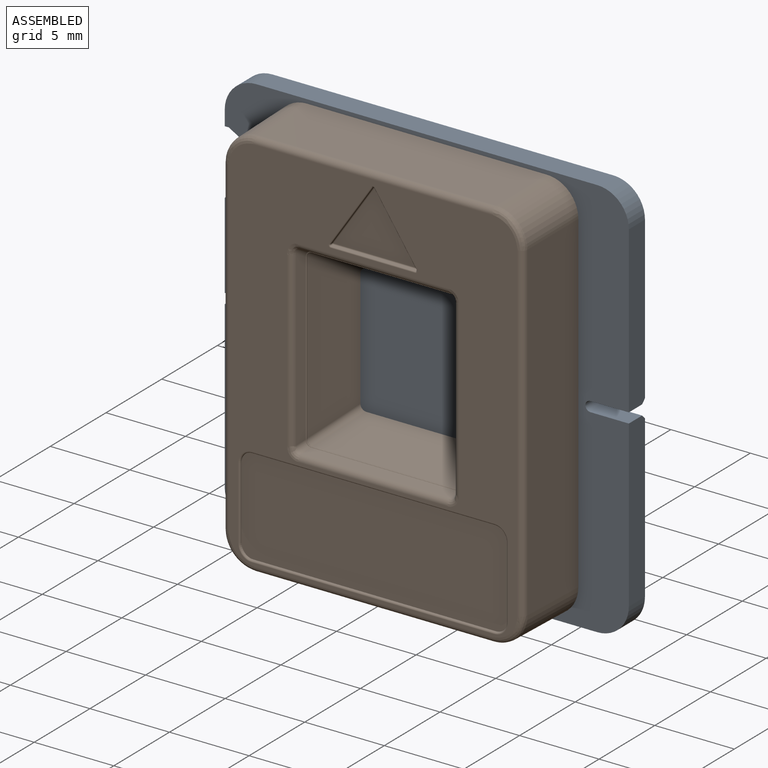
[diagram: assembled view]
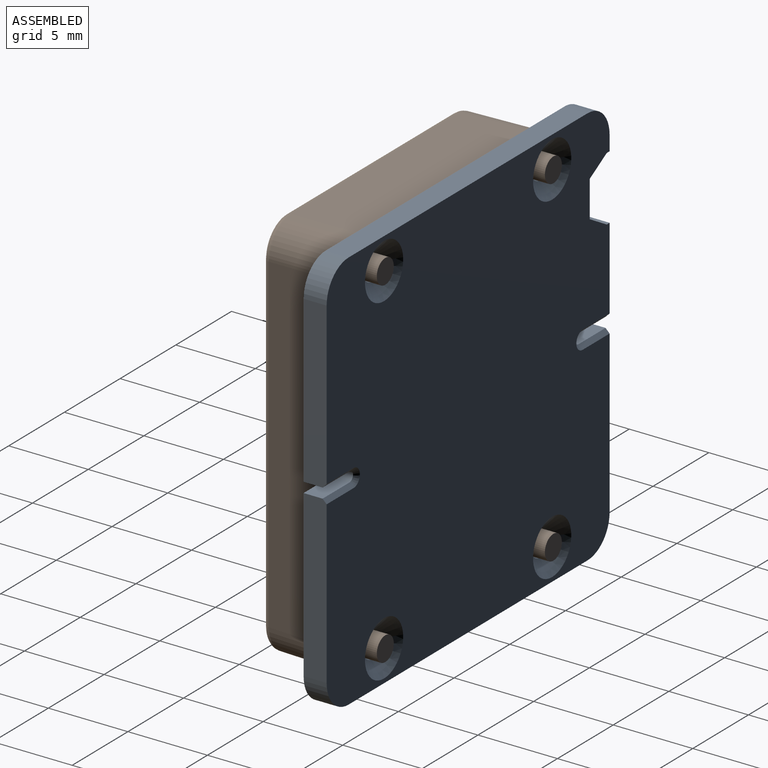
[diagram: assembled view, second angle]
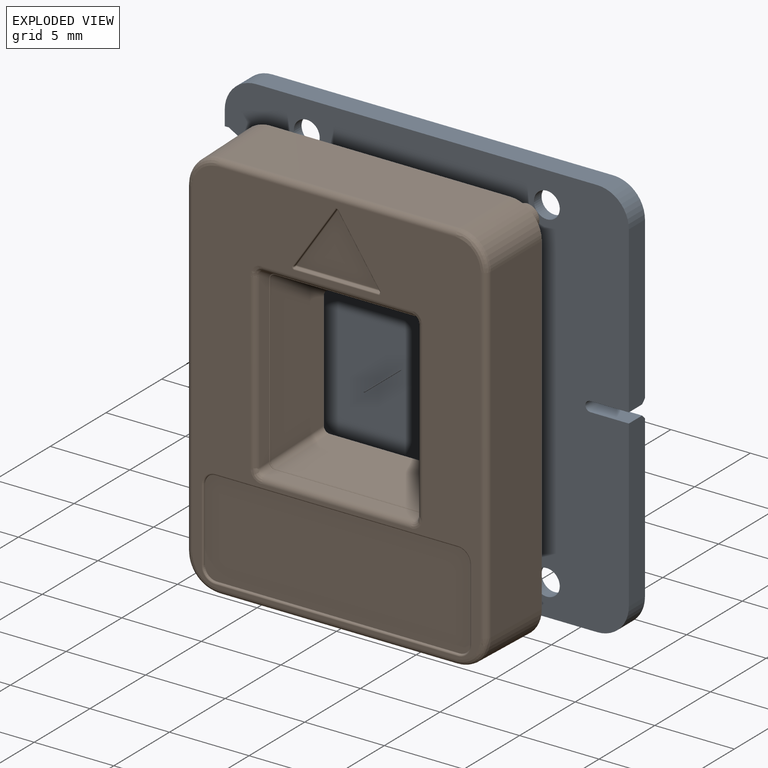
[diagram: exploded view]
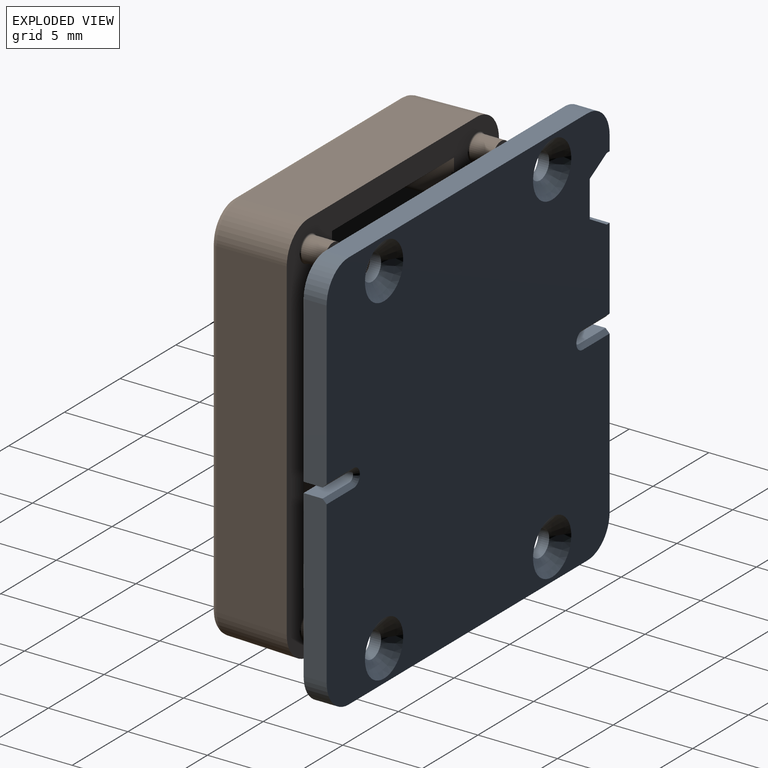
[diagram: exploded view, second angle]
ASSEMBLY  parts=2 mates=3
PART A: 38 faces, bbox 25.4x1.4x25.4 mm
  f0: plane 1.45x0.93mm, normal (-1,0,0), area 1.4mm2, adj f1,f2,f30,f33
  f1: plane 25.4x25.4mm, normal (0,1,0), area 624.2mm2, adj f0,f3,f4,f5,f6,f7,f8,f9
  f2: plane 25.4x25.4mm, normal (0,-1,0), area 592.4mm2, adj f0,f3,f4,f5,f6,f7,f8,f15
  f3: plane 10.4x1.45mm, normal (-1,0,0), area 15mm2, adj f1,f2,f13,f17,f29
  f4: plane 10.4x1.45mm, normal (1,0,0), area 15mm2, adj f1,f2,f9,f20,f32
  f5: plane 5.4x1.45mm, normal (-1,0,0), area 7.8mm2, adj f1,f2,f14,f15,f37
  f6: plane 21.44x1.45mm, normal (0,0,1), area 31mm2, adj f1,f2,f29,f32
  f7: plane 10.4x1.45mm, normal (1,0,0), area 15mm2, adj f1,f2,f11,f18,f31
  f8: plane 21.44x1.45mm, normal (0,0,-1), area 31mm2, adj f1,f2,f30,f31
  f9: plane 2.41x1.19mm, normal (0,0,-1), area 2.9mm2, adj f1,f4,f10,f20
  f10: cylinder r=0.32mm len=1.19mm, axis (0,1,0), area 1.2mm2, adj f1,f9,f11,f19
  f11: plane 2.41x1.19mm, normal (0,0,1), area 2.9mm2, adj f1,f7,f10,f18
  f12: cylinder r=0.32mm len=1.19mm, axis (0,1,0), area 1.2mm2, adj f1,f13,f14,f16
  f13: plane 2.41x1.19mm, normal (0,0,-1), area 2.9mm2, adj f1,f3,f12,f17
  f14: plane 2.41x1.19mm, normal (0,0,1), area 2.9mm2, adj f1,f5,f12,f15
  f15: plane 2.41x0.25mm, normal (0,-0.71,0.71), area 0.9mm2, adj f2,f5,f14,f16
  f16: cone r=0.57mm half-angle=45deg, axis (0,-1,0), area 0.5mm2, adj f2,f12,f15,f17
  f17: plane 2.41x0.25mm, normal (0,-0.71,-0.71), area 0.9mm2, adj f2,f3,f13,f16
  f18: plane 2.41x0.25mm, normal (0,-0.71,0.71), area 0.9mm2, adj f2,f7,f11,f19
  f19: cone r=0.57mm half-angle=45deg, axis (0,-1,0), area 0.5mm2, adj f2,f10,f18,f20
  f20: plane 2.41x0.25mm, normal (0,-0.71,-0.71), area 0.9mm2, adj f2,f4,f9,f19
  f21: cone r=1.71mm half-angle=50deg, axis (0,-1,0), area 9.3mm2, adj f2,f22
  f22: cylinder r=0.81mm len=1.63mm, axis (0,-1,0), area 3.5mm2, adj f1,f21
  f23: cone r=1.71mm half-angle=50deg, axis (0,-1,0), area 9.3mm2, adj f2,f24
  f24: cylinder r=0.81mm len=1.63mm, axis (0,-1,0), area 3.5mm2, adj f1,f23
  f25: cone r=1.71mm half-angle=50deg, axis (0,-1,0), area 9.3mm2, adj f2,f26
  f26: cylinder r=0.81mm len=1.63mm, axis (0,-1,0), area 3.5mm2, adj f1,f25
  f27: cone r=1.71mm half-angle=50deg, axis (0,-1,0), area 9.3mm2, adj f2,f28
  f28: cylinder r=0.81mm len=1.63mm, axis (0,-1,0), area 3.5mm2, adj f1,f27
  f29: cylinder r=1.98mm len=1.98mm, axis (0,-1,0), area 4.5mm2, adj f1,f2,f3,f6
  f30: cylinder r=1.98mm len=1.98mm, axis (0,-1,0), area 4.5mm2, adj f0,f1,f2,f8
  f31: cylinder r=1.98mm len=1.98mm, axis (0,-1,0), area 4.5mm2, adj f1,f2,f7,f8
  f32: cylinder r=1.98mm len=1.98mm, axis (0,-1,0), area 4.5mm2, adj f1,f2,f4,f6
  f33: plane 1.45x0.25mm, normal (0,0,1), area 0.4mm2, adj f0,f1,f2,f34
  f34: plane 1.52x1.45mm, normal (-0.5,0,0.87), area 2.5mm2, adj f1,f2,f33,f35
  f35: plane 2.3x1.45mm, normal (-1,0,0), area 3.3mm2, adj f1,f2,f34,f36
  f36: plane 1.52x1.45mm, normal (-0.5,0,-0.87), area 2.5mm2, adj f1,f2,f35,f37
  f37: plane 1.45x0.25mm, normal (0,0,-1), area 0.4mm2, adj f1,f2,f5,f36
PART B: 148 faces, bbox 19.3x6.6x25.1 mm
  f0: plane 3.14x2.29mm, normal (1,-0.03,0), area 6.8mm2, adj f2,f3,f21,f22,f25,f51,f57,f147
  f1: plane 3.05x2.29mm, normal (-1,-0.03,0), area 6.6mm2, adj f2,f3,f25,f37,f38,f56,f57,f147
  f2: plane 10.97x1.31mm, normal (0,-0.03,1), area 14.3mm2, adj f0,f1,f25,f147
  f3: plane 10.87x1.2mm, normal (0,-0.03,1), area 12.5mm2, adj f0,f1,f57,f147
  f4: plane 3.14x2.29mm, normal (1,-0.03,0), area 6.9mm2, adj f6,f7,f19,f23,f25,f53,f57,f146
  f5: plane 3.05x2.29mm, normal (-1,-0.03,0), area 6.7mm2, adj f6,f7,f24,f25,f35,f54,f57,f146
  f6: plane 10.87x1.2mm, normal (0,-0.03,-1), area 12.5mm2, adj f4,f5,f57,f146
  f7: plane 10.97x1.31mm, normal (0,-0.03,-1), area 14.3mm2, adj f4,f5,f25,f146
  f8: plane 10.27x3.63mm, normal (0.98,0.22,0), area 32.8mm2, adj f14,f62,f66,f92
  f9: plane 10.86x0.64mm, normal (0.98,0.22,0), area 7mm2, adj f13,f67,f68,f99
  f10: plane 9x3.64mm, normal (0,0.22,-0.98), area 30.6mm2, adj f14,f16,f62,f98
  f11: plane 10.86x0.64mm, normal (-0.98,0.22,0), area 7mm2, adj f15,f74,f77,f99
  f12: plane 9.42x0.75mm, normal (0,0.5,0.87), area 8mm2, adj f13,f15,f72,f99
  f13: cylinder r=0.38mm len=0.98mm, axis (-0.19,0.85,-0.49), area 0.5mm2, adj f9,f12,f69,f99
  f14: cylinder r=0.38mm len=3.71mm, axis (-0.21,0.95,0.21), area 2.2mm2, adj f8,f10,f62,f90,f92,f98
  f15: cylinder r=0.38mm len=0.98mm, axis (0.19,0.85,-0.49), area 0.5mm2, adj f11,f12,f75,f99
  f16: cylinder r=0.38mm len=3.71mm, axis (0.21,0.95,0.21), area 2.2mm2, adj f10,f62,f64,f95,f96,f98
  f17: plane 24.18x18.34mm, normal (0,1,0), area 180.6mm2, adj f67,f69,f70,f72,f73,f75,f76,f77
  f18: plane 1.7x0.15mm, normal (1,0,0), area 0.3mm2, adj f21,f22,f25,f47
  f19: plane 1.12x0.15mm, normal (0,0,-1), area 0.2mm2, adj f4,f23,f25,f34
  f20: plane 1.1x0.15mm, normal (-1,0,0), area 0.2mm2, adj f24,f25,f35,f49
  f21: plane 1.12x0.15mm, normal (0,0,1), area 0.2mm2, adj f0,f18,f22,f25
  f22: plane 1.7x1.12mm, normal (0,-1,0), area 1.9mm2, adj f0,f18,f21,f47,f51
  f23: plane 1.12x1.1mm, normal (0,-1,0), area 1.2mm2, adj f4,f19,f34,f48,f53
  f24: plane 1.12x1.1mm, normal (0,-1,0), area 1.2mm2, adj f5,f20,f35,f49,f54
  f25: plane 24.92x19.08mm, normal (0,-1,0), area 130.9mm2, adj f0,f1,f2,f4,f5,f7,f18,f19
  f26: plane 20.93x4.45mm, normal (-1,0.02,0), area 92.8mm2, adj f25,f30,f31,f84
  f27: plane 15.09x4.45mm, normal (0,0.02,1), area 66.8mm2, adj f25,f30,f33,f80
  f28: plane 20.93x4.45mm, normal (1,0.02,0), area 92.8mm2, adj f25,f32,f33,f79
  f29: plane 15.09x4.45mm, normal (0,0.02,-1), area 66.8mm2, adj f25,f31,f32,f83
  f30: cylinder r=1.98mm len=4.47mm, axis (-0.02,-1,0.02), area 13.9mm2, adj f25,f26,f27,f82
  f31: cylinder r=1.98mm len=4.47mm, axis (-0.02,-1,-0.02), area 13.9mm2, adj f25,f26,f29,f85
  f32: cylinder r=1.98mm len=4.47mm, axis (0.02,-1,-0.02), area 13.9mm2, adj f25,f28,f29,f81
  f33: cylinder r=1.98mm len=4.47mm, axis (0.02,-1,0.02), area 13.9mm2, adj f25,f27,f28,f78
  f34: plane 1.1x0.15mm, normal (1,0,0), area 0.2mm2, adj f19,f23,f25,f48
  f35: plane 1.12x0.15mm, normal (0,0,-1), area 0.2mm2, adj f5,f20,f24,f25
  f36: plane 1.7x0.15mm, normal (-1,0,0), area 0.3mm2, adj f25,f37,f38,f50
  f37: plane 1.12x0.15mm, normal (0,0,1), area 0.2mm2, adj f1,f25,f36,f38
  f38: plane 1.7x1.12mm, normal (0,-1,0), area 1.9mm2, adj f1,f36,f37,f50,f56
  f39: cylinder r=0.76mm len=1.52mm, axis (0,1,0), area 6.9mm2, adj f40,f131
  f40: plane 1.52x1.52mm, normal (0,-1,0), area 1.8mm2, adj f39
  f41: cylinder r=0.76mm len=1.52mm, axis (0,1,0), area 6.9mm2, adj f42,f132
  f42: plane 1.52x1.52mm, normal (0,-1,0), area 1.8mm2, adj f41
  f43: cylinder r=0.76mm len=1.52mm, axis (0,1,0), area 6.9mm2, adj f44,f130
  f44: plane 1.52x1.52mm, normal (0,-1,0), area 1.8mm2, adj f43
  f45: cylinder r=0.76mm len=1.52mm, axis (0,1,0), area 6.9mm2, adj f46,f133
  f46: plane 1.52x1.52mm, normal (0,-1,0), area 1.8mm2, adj f45
  f47: plane 3.16x2.29mm, normal (0,-0.03,1), area 7mm2, adj f18,f22,f25,f51,f52,f57
  f48: plane 3.16x2.29mm, normal (0,-0.03,-1), area 7mm2, adj f23,f25,f34,f52,f53,f57
  f49: plane 3.04x2.29mm, normal (0,-0.03,-1), area 6.7mm2, adj f20,f24,f25,f54,f55,f57
  f50: plane 3.04x2.29mm, normal (0,-0.03,1), area 6.7mm2, adj f25,f36,f38,f55,f56,f57
  f51: cone r=0.25mm half-angle=1.5deg, axis (0,1,0), area 1.4mm2, adj f0,f22,f47,f57
  f52: plane 16.76x3.16mm, normal (1,-0.03,0), area 52.8mm2, adj f25,f47,f48,f57
  f53: cone r=0.25mm half-angle=1.5deg, axis (0,1,0), area 1.4mm2, adj f4,f23,f48,f57
  f54: cone r=0.25mm half-angle=1.5deg, axis (0,1,0), area 1.3mm2, adj f5,f24,f49,f57
  f55: plane 16.76x3.02mm, normal (-1,-0.03,0), area 50.5mm2, adj f25,f49,f50,f57
  f56: cone r=0.25mm half-angle=1.5deg, axis (0,1,0), area 1.3mm2, adj f1,f38,f50,f57
  f57: plane 21.83x16.04mm, normal (-0.01,-1,0), area 153.8mm2, adj f0,f1,f3,f4,f5,f6,f47,f48
  f58: plane 12.38x3mm, normal (-0.98,-0.22,0), area 34.4mm2, adj f57,f62,f136,f137
  f59: plane 11.38x2.99mm, normal (0,-0.21,0.98), area 32.3mm2, adj f57,f62,f134,f137
  f60: plane 12.29x2.89mm, normal (0.98,-0.22,0), area 33mm2, adj f57,f62,f134,f135
  f61: plane 11.45x2.99mm, normal (0,-0.5,-0.87), area 36.7mm2, adj f57,f62,f135,f136
  f62: plane 11.22x11.18mm, normal (0,-1,0), area 56mm2, adj f8,f10,f14,f16,f58,f59,f60,f61
  f63: plane 9.32x0.64mm, normal (0,0.22,-0.98), area 6mm2, adj f68,f73,f74,f86,f91,f97
  f64: plane 10.27x3.63mm, normal (-0.98,0.22,0), area 32.8mm2, adj f16,f62,f71,f95
  f65: plane 9.05x3.65mm, normal (0,0.5,0.87), area 34.7mm2, adj f62,f66,f71,f87,f89,f94
  f66: cylinder r=0.38mm len=3.88mm, axis (-0.19,0.85,-0.49), area 2.4mm2, adj f8,f62,f65,f88,f89,f92
  f67: cylinder r=0.38mm len=10.86mm, axis (0,0,-1), area 5.6mm2, adj f9,f17,f69,f70
  f68: cylinder r=0.38mm len=0.74mm, axis (-0.21,0.95,0.21), area 0.4mm2, adj f9,f63,f70,f91,f99
  f69: bspline ~0.79x0.7mm, area 0.3mm2, adj f13,f17,f67,f72
  f70: bspline ~0.76x0.76mm, area 0.4mm2, adj f17,f67,f68,f73
  f71: cylinder r=0.38mm len=3.88mm, axis (0.19,0.85,-0.49), area 2.4mm2, adj f62,f64,f65,f93,f94,f95
  f72: cylinder r=0.38mm len=9.42mm, axis (1,0,0), area 3.8mm2, adj f12,f17,f69,f75
  f73: cylinder r=0.38mm len=9.32mm, axis (-1,0,0), area 4.8mm2, adj f17,f63,f70,f76
  f74: cylinder r=0.38mm len=0.74mm, axis (0.21,0.95,0.21), area 0.4mm2, adj f11,f63,f76,f97,f99
  f75: bspline ~0.79x0.7mm, area 0.3mm2, adj f15,f17,f72,f77
  f76: bspline ~0.76x0.76mm, area 0.4mm2, adj f17,f73,f74,f77
  f77: cylinder r=0.38mm len=10.86mm, axis (0,0,1), area 5.6mm2, adj f11,f17,f75,f76
  f78: bspline ~1.98x1.98mm, area 1.7mm2, adj f17,f33,f79,f80
  f79: cylinder r=0.38mm len=20.77mm, axis (0,0,-1), area 12.3mm2, adj f17,f28,f78,f81
  f80: cylinder r=0.38mm len=14.93mm, axis (1,0,0), area 8.8mm2, adj f17,f27,f78,f82
  f81: bspline ~1.98x1.98mm, area 1.7mm2, adj f17,f32,f79,f83
  f82: bspline ~1.98x1.98mm, area 1.7mm2, adj f17,f30,f80,f84
  f83: cylinder r=0.38mm len=14.93mm, axis (-1,0,0), area 8.8mm2, adj f17,f29,f81,f85
  f84: cylinder r=0.38mm len=20.77mm, axis (0,0,1), area 12.3mm2, adj f17,f26,f82,f85
  f85: bspline ~1.98x1.98mm, area 1.7mm2, adj f17,f31,f83,f84
  f86: cylinder r=0.05mm len=9.02mm, axis (1,0,0), area 1mm2, adj f63,f91,f97,f98
  f87: cylinder r=0.05mm len=9.02mm, axis (-1,0,0), area 1mm2, adj f65,f89,f94,f99
  f88: cone r=0.41mm half-angle=45deg, axis (0,-1,0), area 0mm2, adj f66,f89,f92
  f89: torus R=0.38mm, axis (0,1,0), area 0.1mm2, adj f65,f66,f87,f88,f99,f101
  f90: cone r=0.41mm half-angle=45deg, axis (0,-1,0), area 0mm2, adj f14,f91,f92,f98
  f91: torus R=0.38mm, axis (0,1,0), area 0.1mm2, adj f63,f68,f86,f90,f99,f101
  f92: plane 10.35x0.02mm, normal (0.71,-0.71,0), area 0.2mm2, adj f8,f14,f66,f88,f90,f101
  f93: cone r=0.41mm half-angle=45deg, axis (0,-1,0), area 0mm2, adj f71,f94,f95
  f94: torus R=0.38mm, axis (0,1,0), area 0.1mm2, adj f65,f71,f87,f93,f99,f100
  f95: plane 10.35x0.02mm, normal (-0.71,-0.71,0), area 0.2mm2, adj f16,f64,f71,f93,f96,f100
  f96: cone r=0.41mm half-angle=45deg, axis (0,-1,0), area 0mm2, adj f16,f95,f97,f98
  f97: torus R=0.38mm, axis (0,1,0), area 0.1mm2, adj f63,f74,f86,f96,f99,f100
  f98: plane 9.02x0mm, normal (0,-0.71,-0.71), area 0mm2, adj f10,f14,f16,f86,f90,f96
  f99: plane 10.98x9.89mm, normal (0,1,0), area 0.1mm2, adj f9,f11,f12,f13,f15,f68,f74,f87
  f100: cylinder r=0.05mm len=10.35mm, axis (0,0,-1), area 1.2mm2, adj f94,f95,f97,f99
  f101: cylinder r=0.05mm len=10.35mm, axis (0,0,-1), area 1.2mm2, adj f89,f91,f92,f99
  f102: plane 3.91x2.64mm, normal (0.83,0.09,0.56), area 0.5mm2, adj f107,f110,f114,f115
  f103: plane 3.91x2.64mm, normal (-0.83,0.09,0.56), area 0.5mm2, adj f109,f110,f116,f117
  f104: plane 5.28x0.12mm, normal (0,0.09,-1), area 0.6mm2, adj f108,f115,f116,f120
  f105: plane 5.24x3.88mm, normal (0,1,0), area 10.2mm2, adj f107,f108,f109
  f106: sphere r=0.08mm, area 0mm2, adj f107,f109,f110
  f107: cylinder r=0.08mm len=3.93mm, axis (-0.56,0,0.83), area 0.5mm2, adj f102,f105,f106,f111
  f108: cylinder r=0.08mm len=5.24mm, axis (1,0,0), area 0.6mm2, adj f104,f105,f111,f112
  f109: cylinder r=0.08mm len=3.93mm, axis (-0.56,0,-0.83), area 0.5mm2, adj f103,f105,f106,f112
  f110: cylinder r=0.08mm len=0.13mm, axis (0,-0.99,0.15), area 0mm2, adj f102,f103,f106,f113
  f111: sphere r=0.08mm, area 0mm2, adj f107,f108,f115
  f112: sphere r=0.08mm, area 0mm2, adj f108,f109,f116
  f113: bspline ~0.27x0.12mm, area 0mm2, adj f17,f110,f114,f117
  f114: cylinder r=0.08mm len=3.95mm, axis (0.56,0,-0.83), area 0.5mm2, adj f17,f102,f113,f118
  f115: cylinder r=0.08mm len=0.13mm, axis (0.16,-0.98,-0.09), area 0mm2, adj f102,f104,f111,f118
  f116: cylinder r=0.08mm len=0.13mm, axis (-0.16,-0.98,-0.09), area 0mm2, adj f103,f104,f112,f119
  f117: cylinder r=0.08mm len=3.95mm, axis (0.56,0,0.83), area 0.5mm2, adj f17,f103,f113,f119
  f118: bspline ~0.25x0.18mm, area 0mm2, adj f17,f114,f115,f120
  f119: bspline ~0.25x0.18mm, area 0mm2, adj f17,f116,f117,f120
  f120: cylinder r=0.08mm len=5.28mm, axis (-1,0,0), area 0.6mm2, adj f17,f104,f118,f119
  f121: cone r=0.76mm half-angle=5deg, axis (0,1,0), area 0.1mm2, adj f122,f128,f129,f141
  f122: plane 15.24x0.06mm, normal (0,0.09,-1), area 0.9mm2, adj f121,f123,f129,f139
  f123: cone r=0.76mm half-angle=5deg, axis (0,1,0), area 0.1mm2, adj f122,f124,f129,f138
  f124: plane 4.57x0.06mm, normal (1,0.09,0), area 0.3mm2, adj f123,f125,f129,f140
  f125: cone r=0.76mm half-angle=5deg, axis (0,1,0), area 0.1mm2, adj f124,f126,f129,f142
  f126: plane 15.24x0.06mm, normal (0,0.09,1), area 0.9mm2, adj f125,f127,f129,f144
  f127: cone r=0.76mm half-angle=5deg, axis (0,1,0), area 0.1mm2, adj f126,f128,f129,f145
  f128: plane 4.57x0.06mm, normal (-1,0.09,0), area 0.3mm2, adj f121,f127,f129,f143
  f129: plane 16.74x6.07mm, normal (0,1,0), area 101.1mm2, adj f121,f122,f123,f124,f125,f126,f127,f128
  f130: torus R=0.84mm, axis (0,1,0), area 0.6mm2, adj f25,f43
  f131: torus R=0.84mm, axis (0,1,0), area 0.6mm2, adj f25,f39
  f132: torus R=0.84mm, axis (0,1,0), area 0.6mm2, adj f25,f41
  f133: torus R=0.84mm, axis (0,1,0), area 0.6mm2, adj f25,f45
  f134: cylinder r=0.51mm len=2.94mm, axis (-0.21,-0.96,-0.2), area 2.3mm2, adj f57,f59,f60,f62
  f135: cylinder r=0.51mm len=3.19mm, axis (0.19,0.85,-0.49), area 2.5mm2, adj f57,f60,f61,f62
  f136: cylinder r=0.51mm len=3.29mm, axis (0.19,-0.85,0.49), area 2.6mm2, adj f57,f58,f61,f62
  f137: cylinder r=0.51mm len=3.04mm, axis (-0.21,0.96,0.2), area 2.4mm2, adj f57,f58,f59,f62
  f138: torus R=0.86mm, axis (0,1,0), area 0.2mm2, adj f17,f123,f139,f140
  f139: cylinder r=0.1mm len=15.24mm, axis (-1,0,0), area 2.3mm2, adj f17,f122,f138,f141
  f140: cylinder r=0.1mm len=4.57mm, axis (0,0,-1), area 0.7mm2, adj f17,f124,f138,f142
  f141: torus R=0.86mm, axis (0,1,0), area 0.2mm2, adj f17,f121,f139,f143
  f142: torus R=0.86mm, axis (0,1,0), area 0.2mm2, adj f17,f125,f140,f144
  f143: cylinder r=0.1mm len=4.57mm, axis (0,0,1), area 0.7mm2, adj f17,f128,f141,f145
  f144: cylinder r=0.1mm len=15.24mm, axis (1,0,0), area 2.3mm2, adj f17,f126,f142,f145
  f145: torus R=0.86mm, axis (0,1,0), area 0.2mm2, adj f17,f127,f143,f144
  f146: cylinder r=1.02mm len=10.9mm, axis (-1,0,0), area 7mm2, adj f4,f5,f6,f7
  f147: cylinder r=1.02mm len=10.9mm, axis (-1,0,0), area 7mm2, adj f0,f1,f2,f3
PLACE A rot(axis=(-1,0,0),180deg) t=(51.02,23.09,8.34)mm
PLACE B rot(axis=(-1,0,0),180deg) t=(51.02,21.65,8.3)mm
MATE cylindrical B.f43 <-> A.f27  axis (0,-1,0) through (58.56,21.72,19.06)mm
MATE planar B.f25 <-> A.f1  axis (0,1,0) through (42.99,21.65,-0.04)mm
MATE cylindrical B.f45 <-> A.f23  axis (0,-1,0) through (43.47,21.72,19.06)mm
